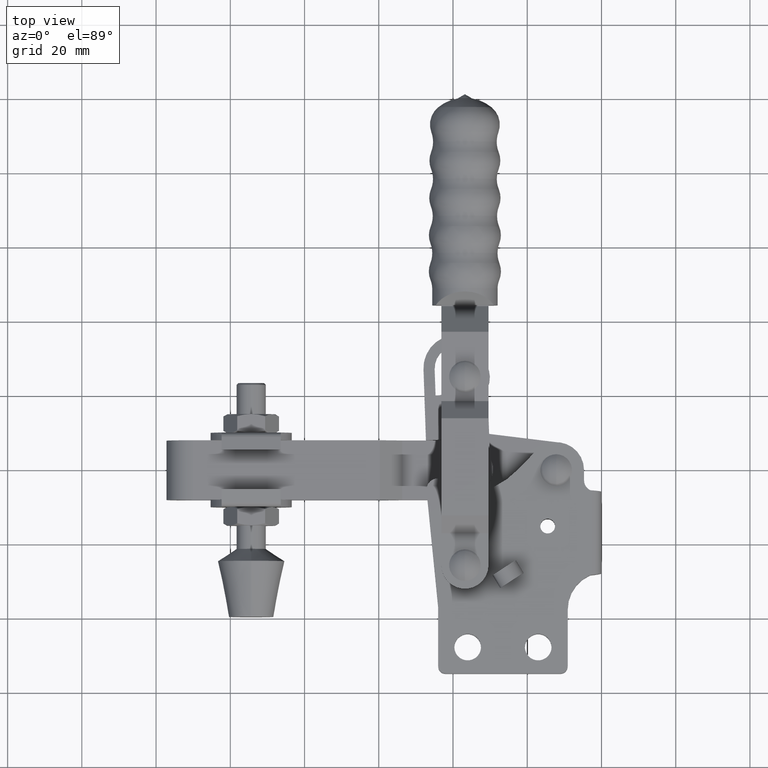
[diagram: clean part render]
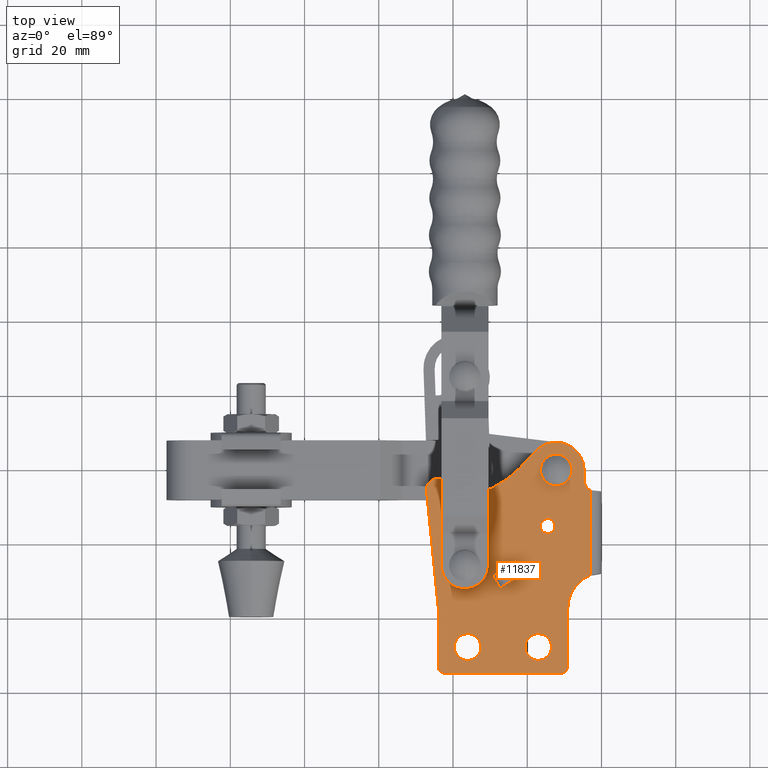
[diagram: same view with one face highlighted and labeled with its STEP entity id]
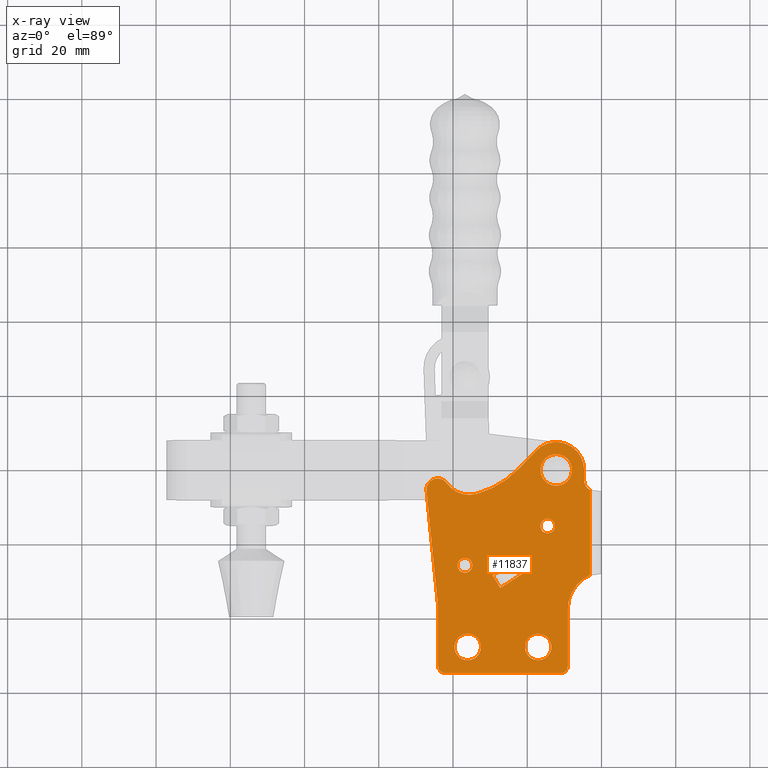
[diagram: x-ray of the same camera — body ghosted, the highlighted face saturated]
A machine part, top view. The second image highlights one B-rep face of the part: STEP entity #11837.
The next image is the same camera in x-ray: the body ghosted, the highlighted face saturated — about 0% of this face is hidden behind the body in this view.
In plain terms, the highlighted planar face has unit normal (-0, -0, 1).
Its self-contained STEP definition (entity closure, byte-faithful):
#24 = CIRCLE ( 'NONE', #9173, 2.000000000000000000 ) ;
#28 = VERTEX_POINT ( 'NONE', #7279 ) ;
#97 = DIRECTION ( 'NONE',  ( 1.000000000000000000, 0.0000000000000000000, 6.938893903907228400E-015 ) ) ;
#176 = CARTESIAN_POINT ( 'NONE',  ( -9.100000000000248300, 2.342271120390503100, 6.002079783401189400 ) ) ;
#235 = CARTESIAN_POINT ( 'NONE',  ( -29.34681372549785600, 11.39705813176804300, 6.002079783401048200 ) ) ;
#319 = EDGE_CURVE ( 'NONE', #6897, #5679, #11458, .T. ) ;
#341 = FACE_BOUND ( 'NONE', #6773, .T. ) ;
#464 = VERTEX_POINT ( 'NONE', #7039 ) ;
#485 = CIRCLE ( 'NONE', #11676, 7.500000000000020400 ) ;
#615 = VERTEX_POINT ( 'NONE', #9269 ) ;
#641 = AXIS2_PLACEMENT_3D ( 'NONE', #9633, #3689, #10637 ) ;
#715 = DIRECTION ( 'NONE',  ( 1.000000000000000000, 0.0000000000000000000, 6.938893903907222100E-015 ) ) ;
#756 = DIRECTION ( 'NONE',  ( 1.000000000000000000, 0.0000000000000000000, 6.987080667128714100E-015 ) ) ;
#803 = CIRCLE ( 'NONE', #9691, 3.600000000000047600 ) ;
#931 = CARTESIAN_POINT ( 'NONE',  ( -12.20000000000026600, 44.04999999999972700, 6.002079783401174300 ) ) ;
#999 = EDGE_CURVE ( 'NONE', #4418, #28, #1782, .T. ) ;
#1034 = DIRECTION ( 'NONE',  ( -6.989997224371206200E-015, -1.411395023974666700E-016, 1.000000000000000000 ) ) ;
#1078 = ORIENTED_EDGE ( 'NONE', *, *, #10694, .T. ) ;
#1126 = EDGE_CURVE ( 'NONE', #8590, #11266, #7527, .T. ) ;
#1153 = ORIENTED_EDGE ( 'NONE', *, *, #9716, .F. ) ;
#1213 = VERTEX_POINT ( 'NONE', #11072 ) ;
#1336 = DIRECTION ( 'NONE',  ( 0.5224644859425232600, -0.8526610469165427600, 3.554330493273023600E-015 ) ) ;
#1403 = EDGE_CURVE ( 'NONE', #464, #10442, #5809, .T. ) ;
#1571 = VECTOR ( 'NONE', #3826, 1000.000000000000000 ) ;
#1584 = DIRECTION ( 'NONE',  ( 6.989997224371206200E-015, 1.411395023974666700E-016, -1.000000000000000000 ) ) ;
#1707 = CARTESIAN_POINT ( 'NONE',  ( 0.8999999999997689800, 2.342271120390503100, 6.002079783401259600 ) ) ;
#1718 = EDGE_CURVE ( 'NONE', #615, #4490, #4232, .T. ) ;
#1782 = LINE ( 'NONE', #9747, #12004 ) ;
#1951 = DIRECTION ( 'NONE',  ( -0.5224644859425241500, 0.8526610469165424300, -3.502410022854131100E-015 ) ) ;
#2024 = ORIENTED_EDGE ( 'NONE', *, *, #7533, .F. ) ;
#2029 = AXIS2_PLACEMENT_3D ( 'NONE', #11783, #8764, #8495 ) ;
#2034 = EDGE_CURVE ( 'NONE', #12640, #5022, #10727, .T. ) ;
#2057 = EDGE_LOOP ( 'NONE', ( #11994, #2884 ) ) ;
#2124 = EDGE_CURVE ( 'NONE', #5679, #6897, #6542, .T. ) ;
#2179 = VERTEX_POINT ( 'NONE', #931 ) ;
#2283 = CARTESIAN_POINT ( 'NONE',  ( -3.098960105732759800, 34.39615173331817700, 6.002079783401238300 ) ) ;
#2299 = EDGE_CURVE ( 'NONE', #9117, #2179, #10712, .T. ) ;
#2391 = ORIENTED_EDGE ( 'NONE', *, *, #4607, .T. ) ;
#2459 = DIRECTION ( 'NONE',  ( -0.8389507998434636600, -0.5442072725001133600, -5.972563109759421500E-015 ) ) ;
#2487 = CARTESIAN_POINT ( 'NONE',  ( -20.65000000000018300, -7.900000000000265900, 6.002079783401107700 ) ) ;
#2565 = ORIENTED_EDGE ( 'NONE', *, *, #8466, .F. ) ;
#2592 = AXIS2_PLACEMENT_3D ( 'NONE', #3609, #10556, #4586 ) ;
#2732 = DIRECTION ( 'NONE',  ( 1.000000000000000000, -1.301042606982601400E-016, 7.025630077706047400E-015 ) ) ;
#2764 = VECTOR ( 'NONE', #4617, 999.9999999999998900 ) ;
#2781 = CARTESIAN_POINT ( 'NONE',  ( -20.95813769762288500, 12.05698809218489000, 6.002079783401108600 ) ) ;
#2855 = CARTESIAN_POINT ( 'NONE',  ( -39.00000000000033400, -15.00000000000019400, 6.002079783400978000 ) ) ;
#2884 = ORIENTED_EDGE ( 'NONE', *, *, #6644, .F. ) ;
#2917 = DIRECTION ( 'NONE',  ( -6.989997224371206200E-015, -1.411395023974666700E-016, 1.000000000000000000 ) ) ;
#2918 = ORIENTED_EDGE ( 'NONE', *, *, #7197, .F. ) ;
#2989 = FACE_BOUND ( 'NONE', #8754, .T. ) ;
#2998 = LINE ( 'NONE', #4752, #8268 ) ;
#3018 = EDGE_LOOP ( 'NONE', ( #2565, #3360, #9803, #8570, #1153, #8315 ) ) ;
#3035 = DIRECTION ( 'NONE',  ( 1.000000000000000000, 0.0000000000000000000, 6.938893903907225200E-015 ) ) ;
#3054 = DIRECTION ( 'NONE',  ( 1.000000000000000000, 0.0000000000000000000, 6.938893903907209400E-015 ) ) ;
#3180 = VECTOR ( 'NONE', #3592, 1000.000000000000000 ) ;
#3183 = CARTESIAN_POINT ( 'NONE',  ( -36.05000000000026000, -7.900000000000260600, 6.002079783401000200 ) ) ;
#3360 = ORIENTED_EDGE ( 'NONE', *, *, #1718, .F. ) ;
#3485 = CARTESIAN_POINT ( 'NONE',  ( -13.45000000000008600, -7.900000000000267700, 6.002079783401157400 ) ) ;
#3515 = ORIENTED_EDGE ( 'NONE', *, *, #4483, .T. ) ;
#3592 = DIRECTION ( 'NONE',  ( -0.6911580781339126100, -0.7227036121607780500, -4.933195075959010200E-015 ) ) ;
#3609 = CARTESIAN_POINT ( 'NONE',  ( -36.80000000000023900, 14.09999999999973900, 6.002079783400998500 ) ) ;
#3638 = CARTESIAN_POINT ( 'NONE',  ( -44.00000000000028400, 2.999999999999829000, 6.002079783400946100 ) ) ;
#3689 = DIRECTION ( 'NONE',  ( 6.989997224371206200E-015, 1.411395023974666700E-016, -1.000000000000000000 ) ) ;
#3717 = CIRCLE ( 'NONE', #6945, 2.000000000000000000 ) ;
#3826 = DIRECTION ( 'NONE',  ( 1.000000000000000000, -2.782208392542263800E-015, 6.989997224371205400E-015 ) ) ;
#3922 = CARTESIAN_POINT ( 'NONE',  ( -9.100000000000262500, 2.342271120390503100, 6.002079783401189400 ) ) ;
#3930 = PLANE ( 'NONE',  #9845 ) ;
#3931 = VERTEX_POINT ( 'NONE', #5413 ) ;
#3967 = EDGE_CURVE ( 'NONE', #10473, #615, #12025, .T. ) ;
#3970 = DIRECTION ( 'NONE',  ( 1.000000000000000000, -1.348392324170261800E-016, 6.989997224371206200E-015 ) ) ;
#4019 = EDGE_CURVE ( 'NONE', #3931, #10868, #5837, .T. ) ;
#4031 = CARTESIAN_POINT ( 'NONE',  ( -4.700000000000224900, 37.04999999999972700, 6.002079783401225800 ) ) ;
#4130 = CARTESIAN_POINT ( 'NONE',  ( -23.46730300305788900, 15.19563764598992600, 6.002079783401090800 ) ) ;
#4195 = VERTEX_POINT ( 'NONE', #10348 ) ;
#4212 = CARTESIAN_POINT ( 'NONE',  ( -47.12506452503666300, 34.20101876084085300, 6.002079783400928300 ) ) ;
#4232 = LINE ( 'NONE', #235, #6874 ) ;
#4288 = EDGE_CURVE ( 'NONE', #5327, #5407, #9364, .T. ) ;
#4394 = ORIENTED_EDGE ( 'NONE', *, *, #6701, .T. ) ;
#4418 = VERTEX_POINT ( 'NONE', #2781 ) ;
#4453 = VECTOR ( 'NONE', #6549, 1000.000000000000100 ) ;
#4483 = EDGE_CURVE ( 'NONE', #9704, #12763, #2998, .T. ) ;
#4490 = VERTEX_POINT ( 'NONE', #5498 ) ;
#4586 = DIRECTION ( 'NONE',  ( 1.000000000000000000, 0.0000000000000000000, 6.938893903907222100E-015 ) ) ;
#4607 = EDGE_CURVE ( 'NONE', #11266, #5866, #5142, .T. ) ;
#4617 = DIRECTION ( 'NONE',  ( 0.8389507998436422900, 0.5442072724998380200, 5.960787430376248000E-015 ) ) ;
#4684 = CARTESIAN_POINT ( 'NONE',  ( -32.45000000000021600, -7.900000000000260600, 6.002079783401025100 ) ) ;
#4693 = LINE ( 'NONE', #4130, #12296 ) ;
#4743 = EDGE_LOOP ( 'NONE', ( #5302, #12554 ) ) ;
#4752 = CARTESIAN_POINT ( 'NONE',  ( -44.00000000000028400, 2.999999999999829000, 6.002079783400946100 ) ) ;
#4807 = DIRECTION ( 'NONE',  ( -6.989997224371206200E-015, -1.411395023974666700E-016, 1.000000000000000000 ) ) ;
#4815 = VERTEX_POINT ( 'NONE', #5094 ) ;
#4884 = DIRECTION ( 'NONE',  ( -6.989997224371206200E-015, -1.411395023974666700E-016, 1.000000000000000000 ) ) ;
#4990 = CIRCLE ( 'NONE', #8175, 25.00000000000005700 ) ;
#5022 = VERTEX_POINT ( 'NONE', #2487 ) ;
#5047 = DIRECTION ( 'NONE',  ( -6.989997224371206200E-015, -1.411395023974666700E-016, 1.000000000000000000 ) ) ;
#5094 = CARTESIAN_POINT ( 'NONE',  ( -12.50000000000008000, 24.69999999999972900, 6.002079783401169000 ) ) ;
#5142 = LINE ( 'NONE', #11684, #10454 ) ;
#5211 = CARTESIAN_POINT ( 'NONE',  ( -12.20000000000026600, 35.54999999999972000, 6.002079783401172500 ) ) ;
#5296 = AXIS2_PLACEMENT_3D ( 'NONE', #5586, #8622, #9305 ) ;
#5302 = ORIENTED_EDGE ( 'NONE', *, *, #12840, .F. ) ;
#5306 = DIRECTION ( 'NONE',  ( -3.150134990218940000E-018, 1.000000000000000000, 3.150134990222138200E-018 ) ) ;
#5310 = FACE_OUTER_BOUND ( 'NONE', #9687, .T. ) ;
#5327 = VERTEX_POINT ( 'NONE', #8069 ) ;
#5350 = ORIENTED_EDGE ( 'NONE', *, *, #4288, .F. ) ;
#5364 = EDGE_CURVE ( 'NONE', #6117, #8445, #7896, .T. ) ;
#5407 = VERTEX_POINT ( 'NONE', #10216 ) ;
#5413 = CARTESIAN_POINT ( 'NONE',  ( -41.69559368669192900, 36.23921757565213400, 6.002079783400967400 ) ) ;
#5498 = CARTESIAN_POINT ( 'NONE',  ( -27.25023928180643700, 7.975452629010282700, 6.002079783401062400 ) ) ;
#5586 = CARTESIAN_POINT ( 'NONE',  ( -36.05000000000026000, -7.900000000000260600, 6.002079783401000200 ) ) ;
#5593 = VECTOR ( 'NONE', #6126, 1000.000000000000000 ) ;
#5625 = FACE_BOUND ( 'NONE', #10307, .T. ) ;
#5632 = DIRECTION ( 'NONE',  ( -6.989997224371206200E-015, -1.411395023974666700E-016, 1.000000000000000000 ) ) ;
#5679 = VERTEX_POINT ( 'NONE', #4684 ) ;
#5741 = CIRCLE ( 'NONE', #641, 7.499999999999992900 ) ;
#5743 = DIRECTION ( 'NONE',  ( -2.286290176268441400E-017, 1.000000000000000000, 1.411395023974665500E-016 ) ) ;
#5809 = LINE ( 'NONE', #12104, #3180 ) ;
#5837 = CIRCLE ( 'NONE', #10147, 2.999999999999954300 ) ;
#5838 = CARTESIAN_POINT ( 'NONE',  ( -11.10000000000023100, -13.00000000000027200, 6.002079783401173400 ) ) ;
#5866 = VERTEX_POINT ( 'NONE', #7021 ) ;
#5918 = FACE_BOUND ( 'NONE', #2057, .T. ) ;
#5926 = DIRECTION ( 'NONE',  ( -6.989997224371206200E-015, -1.411395023974666700E-016, 1.000000000000000000 ) ) ;
#5954 = VECTOR ( 'NONE', #5306, 1000.000000000000000 ) ;
#6036 = DIRECTION ( 'NONE',  ( -6.989997224371206200E-015, -1.411395023974666700E-016, 1.000000000000000000 ) ) ;
#6117 = VERTEX_POINT ( 'NONE', #9337 ) ;
#6126 = DIRECTION ( 'NONE',  ( -1.130123360893515600E-015, 1.000000000000000000, 1.411395023974588100E-016 ) ) ;
#6209 = EDGE_CURVE ( 'NONE', #10442, #6540, #4990, .T. ) ;
#6384 = AXIS2_PLACEMENT_3D ( 'NONE', #8988, #7953, #3035 ) ;
#6525 = CIRCLE ( 'NONE', #8619, 2.000000000000000000 ) ;
#6540 = VERTEX_POINT ( 'NONE', #9005 ) ;
#6542 = CIRCLE ( 'NONE', #5296, 3.600000000000047600 ) ;
#6549 = DIRECTION ( 'NONE',  ( -0.8526610469161902700, -0.5224644859430986900, -6.020460134227882700E-015 ) ) ;
#6603 = CARTESIAN_POINT ( 'NONE',  ( -11.10000000000023400, -15.00000000000027200, 6.002079783401173400 ) ) ;
#6644 = EDGE_CURVE ( 'NONE', #5022, #12640, #803, .T. ) ;
#6648 = CIRCLE ( 'NONE', #12643, 2.000000000000001800 ) ;
#6654 = DIRECTION ( 'NONE',  ( -6.989997224371206200E-015, -1.411395023974666700E-016, 1.000000000000000000 ) ) ;
#6701 = EDGE_CURVE ( 'NONE', #5866, #464, #485, .T. ) ;
#6773 = EDGE_LOOP ( 'NONE', ( #2024, #5350 ) ) ;
#6835 = LINE ( 'NONE', #2855, #1571 ) ;
#6837 = DIRECTION ( 'NONE',  ( 1.000000000000000000, 0.0000000000000000000, 6.938893903907228400E-015 ) ) ;
#6874 = VECTOR ( 'NONE', #1336, 1000.000000000000200 ) ;
#6897 = VERTEX_POINT ( 'NONE', #10379 ) ;
#6945 = AXIS2_PLACEMENT_3D ( 'NONE', #11966, #6036, #97 ) ;
#6969 = CARTESIAN_POINT ( 'NONE',  ( -14.50000000000008000, 24.69999999999972900, 6.002079783401154800 ) ) ;
#6980 = CARTESIAN_POINT ( 'NONE',  ( -23.46730300305788900, 15.19563764598992600, 6.002079783401090800 ) ) ;
#7021 = CARTESIAN_POINT ( 'NONE',  ( -4.700000000000216000, 39.79999999999973400, 6.002079783401226700 ) ) ;
#7039 = CARTESIAN_POINT ( 'NONE',  ( -17.62027709120608100, 44.98368558600410700, 6.002079783401136100 ) ) ;
#7066 = ORIENTED_EDGE ( 'NONE', *, *, #9534, .T. ) ;
#7197 = EDGE_CURVE ( 'NONE', #4815, #10060, #3717, .T. ) ;
#7279 = CARTESIAN_POINT ( 'NONE',  ( -23.05206715333758200, 15.47427697959741300, 6.002079783401094400 ) ) ;
#7310 = ORIENTED_EDGE ( 'NONE', *, *, #8843, .T. ) ;
#7409 = CARTESIAN_POINT ( 'NONE',  ( -17.05000000000013600, -7.900000000000267700, 6.002079783401132600 ) ) ;
#7493 = DIRECTION ( 'NONE',  ( -6.989997224371206200E-015, -1.411395023974666700E-016, 1.000000000000000000 ) ) ;
#7519 = CARTESIAN_POINT ( 'NONE',  ( -40.30000000000040200, 57.43999999999956400, 6.002079783400978900 ) ) ;
#7527 = CIRCLE ( 'NONE', #2029, 2.999999999999954300 ) ;
#7528 = ORIENTED_EDGE ( 'NONE', *, *, #6209, .T. ) ;
#7533 = EDGE_CURVE ( 'NONE', #5407, #5327, #12545, .T. ) ;
#7540 = DIRECTION ( 'NONE',  ( 1.000000000000000000, 0.0000000000000000000, 6.987080667128714100E-015 ) ) ;
#7804 = ORIENTED_EDGE ( 'NONE', *, *, #12825, .T. ) ;
#7823 = CIRCLE ( 'NONE', #10078, 10.00000000000003000 ) ;
#7842 = EDGE_CURVE ( 'NONE', #12763, #1213, #6648, .T. ) ;
#7896 = LINE ( 'NONE', #176, #5593 ) ;
#7910 = CARTESIAN_POINT ( 'NONE',  ( 47.13999999999977300, 34.49999999999974400, 6.002079783401587300 ) ) ;
#7924 = FACE_BOUND ( 'NONE', #3018, .T. ) ;
#7953 = DIRECTION ( 'NONE',  ( -6.989997224371206200E-015, -1.411395023974666700E-016, 1.000000000000000000 ) ) ;
#7956 = DIRECTION ( 'NONE',  ( 1.000000000000000000, 0.0000000000000000000, 6.938893903907228400E-015 ) ) ;
#7963 = VECTOR ( 'NONE', #2459, 1000.000000000000000 ) ;
#8069 = CARTESIAN_POINT ( 'NONE',  ( -38.80000000000024600, 14.09999999999973900, 6.002079783400984200 ) ) ;
#8175 = AXIS2_PLACEMENT_3D ( 'NONE', #7519, #1584, #8520 ) ;
#8268 = VECTOR ( 'NONE', #12368, 1000.000000000000000 ) ;
#8315 = ORIENTED_EDGE ( 'NONE', *, *, #999, .F. ) ;
#8444 = LINE ( 'NONE', #3638, #10142 ) ;
#8445 = VERTEX_POINT ( 'NONE', #3922 ) ;
#8466 = EDGE_CURVE ( 'NONE', #4490, #4418, #10977, .T. ) ;
#8495 = DIRECTION ( 'NONE',  ( 1.000000000000000000, 0.0000000000000000000, 6.938893903907334100E-015 ) ) ;
#8520 = DIRECTION ( 'NONE',  ( 1.000000000000000000, 0.0000000000000000000, 6.973588373426748700E-015 ) ) ;
#8570 = ORIENTED_EDGE ( 'NONE', *, *, #10979, .F. ) ;
#8590 = VERTEX_POINT ( 'NONE', #2283 ) ;
#8611 = LINE ( 'NONE', #9248, #5954 ) ;
#8619 = AXIS2_PLACEMENT_3D ( 'NONE', #5838, #12767, #6837 ) ;
#8622 = DIRECTION ( 'NONE',  ( -6.989997224371206200E-015, -1.411395023974666700E-016, 1.000000000000000000 ) ) ;
#8650 = DIRECTION ( 'NONE',  ( 6.989997224371206200E-015, 1.411395023974666700E-016, -1.000000000000000000 ) ) ;
#8683 = CARTESIAN_POINT ( 'NONE',  ( -16.50000000000008200, 24.69999999999972900, 6.002079783401141500 ) ) ;
#8686 = ORIENTED_EDGE ( 'NONE', *, *, #12736, .T. ) ;
#8697 = AXIS2_PLACEMENT_3D ( 'NONE', #10994, #5047, #11958 ) ;
#8754 = EDGE_LOOP ( 'NONE', ( #10952, #12232 ) ) ;
#8764 = DIRECTION ( 'NONE',  ( 6.989997224371206200E-015, 1.411395023974666700E-016, -1.000000000000000000 ) ) ;
#8822 = CARTESIAN_POINT ( 'NONE',  ( -17.05000000000013600, -7.900000000000267700, 6.002079783401132600 ) ) ;
#8843 = EDGE_CURVE ( 'NONE', #8445, #4195, #7823, .T. ) ;
#8971 = ORIENTED_EDGE ( 'NONE', *, *, #1403, .T. ) ;
#8976 = CARTESIAN_POINT ( 'NONE',  ( -44.00000000000028400, 2.999999999999829000, 6.002079783400946100 ) ) ;
#8988 = CARTESIAN_POINT ( 'NONE',  ( -12.20000000000026800, 39.79999999999972700, 6.002079783401173400 ) ) ;
#8989 = ORIENTED_EDGE ( 'NONE', *, *, #4019, .T. ) ;
#9005 = CARTESIAN_POINT ( 'NONE',  ( -33.56368271917283200, 33.36465930683333200, 6.002079783401023300 ) ) ;
#9117 = VERTEX_POINT ( 'NONE', #5211 ) ;
#9173 = AXIS2_PLACEMENT_3D ( 'NONE', #6969, #1034, #7956 ) ;
#9230 = ORIENTED_EDGE ( 'NONE', *, *, #10936, .T. ) ;
#9248 = CARTESIAN_POINT ( 'NONE',  ( -3.098960105732758900, 2.049999999999808900, 6.002079783401240000 ) ) ;
#9269 = CARTESIAN_POINT ( 'NONE',  ( -29.34681372549794500, 11.39705813176808400, 6.002079783401048200 ) ) ;
#9305 = DIRECTION ( 'NONE',  ( 1.000000000000000000, 0.0000000000000000000, 6.987080667128714100E-015 ) ) ;
#9333 = CARTESIAN_POINT ( 'NONE',  ( -23.46730300305788900, 15.19563764598992600, 6.002079783401090800 ) ) ;
#9337 = CARTESIAN_POINT ( 'NONE',  ( -9.100000000000230600, -13.00000000000026600, 6.002079783401188500 ) ) ;
#9364 = CIRCLE ( 'NONE', #2592, 2.000000000000001800 ) ;
#9534 = EDGE_CURVE ( 'NONE', #10868, #9704, #8444, .T. ) ;
#9578 = ORIENTED_EDGE ( 'NONE', *, *, #11845, .F. ) ;
#9633 = CARTESIAN_POINT ( 'NONE',  ( -35.58457790342108500, 40.58726151478317900, 6.002079783401010000 ) ) ;
#9687 = EDGE_LOOP ( 'NONE', ( #3515, #10309, #1078, #7804, #11513, #7310, #9230, #12571, #2391, #4394, #8971, #7528, #8686, #8989, #7066 ) ) ;
#9691 = AXIS2_PLACEMENT_3D ( 'NONE', #8822, #2917, #9841 ) ;
#9704 = VERTEX_POINT ( 'NONE', #8976 ) ;
#9716 = EDGE_CURVE ( 'NONE', #28, #10302, #4693, .T. ) ;
#9747 = CARTESIAN_POINT ( 'NONE',  ( -23.05206715333758900, 15.47427697959739800, 6.002079783401093500 ) ) ;
#9803 = ORIENTED_EDGE ( 'NONE', *, *, #3967, .F. ) ;
#9841 = DIRECTION ( 'NONE',  ( 1.000000000000000000, 0.0000000000000000000, 6.987080667128714100E-015 ) ) ;
#9845 = AXIS2_PLACEMENT_3D ( 'NONE', #7910, #9916, #3970 ) ;
#9916 = DIRECTION ( 'NONE',  ( -6.989997224371206200E-015, -1.411395023974666700E-016, 1.000000000000000000 ) ) ;
#10060 = VERTEX_POINT ( 'NONE', #8683 ) ;
#10078 = AXIS2_PLACEMENT_3D ( 'NONE', #1707, #8650, #2732 ) ;
#10142 = VECTOR ( 'NONE', #11569, 1000.000000000000200 ) ;
#10147 = AXIS2_PLACEMENT_3D ( 'NONE', #11570, #5632, #12553 ) ;
#10205 = CARTESIAN_POINT ( 'NONE',  ( -28.92048320204016700, 11.65829037473934600, 6.002079783401051700 ) ) ;
#10216 = CARTESIAN_POINT ( 'NONE',  ( -34.80000000000023900, 14.09999999999973900, 6.002079783401011800 ) ) ;
#10302 = VERTEX_POINT ( 'NONE', #6980 ) ;
#10307 = EDGE_LOOP ( 'NONE', ( #2918, #9578 ) ) ;
#10309 = ORIENTED_EDGE ( 'NONE', *, *, #7842, .T. ) ;
#10348 = CARTESIAN_POINT ( 'NONE',  ( -3.098960105732758500, 11.50787628714082800, 6.002079783401235600 ) ) ;
#10379 = CARTESIAN_POINT ( 'NONE',  ( -39.65000000000031100, -7.900000000000258800, 6.002079783400974500 ) ) ;
#10442 = VERTEX_POINT ( 'NONE', #11162 ) ;
#10454 = VECTOR ( 'NONE', #5743, 1000.000000000000000 ) ;
#10473 = VERTEX_POINT ( 'NONE', #10205 ) ;
#10556 = DIRECTION ( 'NONE',  ( -6.989997224371206200E-015, -1.411395023974666700E-016, 1.000000000000000000 ) ) ;
#10600 = FACE_BOUND ( 'NONE', #4743, .T. ) ;
#10626 = AXIS2_PLACEMENT_3D ( 'NONE', #10831, #4884, #11815 ) ;
#10637 = DIRECTION ( 'NONE',  ( 1.000000000000000000, 0.0000000000000000000, 6.938893903907234700E-015 ) ) ;
#10638 = LINE ( 'NONE', #9333, #7963 ) ;
#10694 = EDGE_CURVE ( 'NONE', #1213, #12696, #6835, .T. ) ;
#10712 = CIRCLE ( 'NONE', #6384, 4.250000000000001800 ) ;
#10727 = CIRCLE ( 'NONE', #12831, 3.600000000000047600 ) ;
#10831 = CARTESIAN_POINT ( 'NONE',  ( -12.20000000000026800, 39.79999999999972700, 6.002079783401173400 ) ) ;
#10868 = VERTEX_POINT ( 'NONE', #4212 ) ;
#10936 = EDGE_CURVE ( 'NONE', #4195, #8590, #8611, .T. ) ;
#10952 = ORIENTED_EDGE ( 'NONE', *, *, #2124, .F. ) ;
#10977 = LINE ( 'NONE', #12841, #2764 ) ;
#10979 = EDGE_CURVE ( 'NONE', #10302, #10473, #10638, .T. ) ;
#10994 = CARTESIAN_POINT ( 'NONE',  ( -36.80000000000023900, 14.09999999999973900, 6.002079783400998500 ) ) ;
#11072 = CARTESIAN_POINT ( 'NONE',  ( -42.00000000000027700, -15.00000000000018500, 6.002079783400957600 ) ) ;
#11094 = DIRECTION ( 'NONE',  ( -0.8303709165860294600, -0.5572110380170848300, -5.942218806596226900E-015 ) ) ;
#11162 = CARTESIAN_POINT ( 'NONE',  ( -22.23240969598096900, 40.16104804665166500, 6.002079783401103300 ) ) ;
#11266 = VERTEX_POINT ( 'NONE', #4031 ) ;
#11458 = CIRCLE ( 'NONE', #12078, 3.600000000000047600 ) ;
#11513 = ORIENTED_EDGE ( 'NONE', *, *, #5364, .T. ) ;
#11569 = DIRECTION ( 'NONE',  ( 0.09966041305296249900, -0.9950215083454793100, 5.561891700572380900E-016 ) ) ;
#11570 = CARTESIAN_POINT ( 'NONE',  ( -44.14000000000024200, 34.49999999999973000, 6.002079783400949600 ) ) ;
#11676 = AXIS2_PLACEMENT_3D ( 'NONE', #11863, #5926, #3054 ) ;
#11684 = CARTESIAN_POINT ( 'NONE',  ( -4.700000000000224900, 39.79999999999973400, 6.002079783401226700 ) ) ;
#11777 = CIRCLE ( 'NONE', #10626, 4.250000000000001800 ) ;
#11783 = CARTESIAN_POINT ( 'NONE',  ( -1.700000000000278400, 37.04999999999972700, 6.002079783401246300 ) ) ;
#11815 = DIRECTION ( 'NONE',  ( 1.000000000000000000, 0.0000000000000000000, 6.938893903907225200E-015 ) ) ;
#11837 = ADVANCED_FACE ( 'NONE', ( #5918, #341, #5625, #2989, #10600, #7924, #5310 ), #3930, .T. ) ;
#11845 = EDGE_CURVE ( 'NONE', #10060, #4815, #24, .T. ) ;
#11863 = CARTESIAN_POINT ( 'NONE',  ( -12.20000000000023900, 39.79999999999973400, 6.002079783401173400 ) ) ;
#11958 = DIRECTION ( 'NONE',  ( 1.000000000000000000, 0.0000000000000000000, 6.938893903907222100E-015 ) ) ;
#11966 = CARTESIAN_POINT ( 'NONE',  ( -14.50000000000008000, 24.69999999999972900, 6.002079783401154800 ) ) ;
#11994 = ORIENTED_EDGE ( 'NONE', *, *, #2034, .F. ) ;
#12004 = VECTOR ( 'NONE', #1951, 999.9999999999998900 ) ;
#12025 = LINE ( 'NONE', #12476, #4453 ) ;
#12078 = AXIS2_PLACEMENT_3D ( 'NONE', #3183, #4807, #756 ) ;
#12104 = CARTESIAN_POINT ( 'NONE',  ( -22.23240969598095500, 40.16104804665166500, 6.002079783401103300 ) ) ;
#12232 = ORIENTED_EDGE ( 'NONE', *, *, #319, .F. ) ;
#12296 = VECTOR ( 'NONE', #11094, 1000.000000000000100 ) ;
#12368 = DIRECTION ( 'NONE',  ( -1.348392324170252000E-016, -1.000000000000000000, -1.411395023974676600E-016 ) ) ;
#12476 = CARTESIAN_POINT ( 'NONE',  ( -28.92048320204016700, 11.65829037473934600, 6.002079783401051700 ) ) ;
#12545 = CIRCLE ( 'NONE', #8697, 2.000000000000001800 ) ;
#12553 = DIRECTION ( 'NONE',  ( 1.000000000000000000, 0.0000000000000000000, 6.938893903907334100E-015 ) ) ;
#12554 = ORIENTED_EDGE ( 'NONE', *, *, #2299, .F. ) ;
#12571 = ORIENTED_EDGE ( 'NONE', *, *, #1126, .T. ) ;
#12576 = CARTESIAN_POINT ( 'NONE',  ( -42.00000000000027000, -13.00000000000018500, 6.002079783400957600 ) ) ;
#12640 = VERTEX_POINT ( 'NONE', #3485 ) ;
#12643 = AXIS2_PLACEMENT_3D ( 'NONE', #12576, #6654, #715 ) ;
#12645 = CARTESIAN_POINT ( 'NONE',  ( -44.00000000000028400, -13.00000000000018500, 6.002079783400943400 ) ) ;
#12696 = VERTEX_POINT ( 'NONE', #6603 ) ;
#12736 = EDGE_CURVE ( 'NONE', #6540, #3931, #5741, .T. ) ;
#12763 = VERTEX_POINT ( 'NONE', #12645 ) ;
#12767 = DIRECTION ( 'NONE',  ( -6.989997224371206200E-015, -1.411395023974666700E-016, 1.000000000000000000 ) ) ;
#12825 = EDGE_CURVE ( 'NONE', #12696, #6117, #6525, .T. ) ;
#12831 = AXIS2_PLACEMENT_3D ( 'NONE', #7409, #7493, #7540 ) ;
#12840 = EDGE_CURVE ( 'NONE', #2179, #9117, #11777, .T. ) ;
#12841 = CARTESIAN_POINT ( 'NONE',  ( -21.37924657092241200, 11.78382486091242300, 6.002079783401105000 ) ) ;